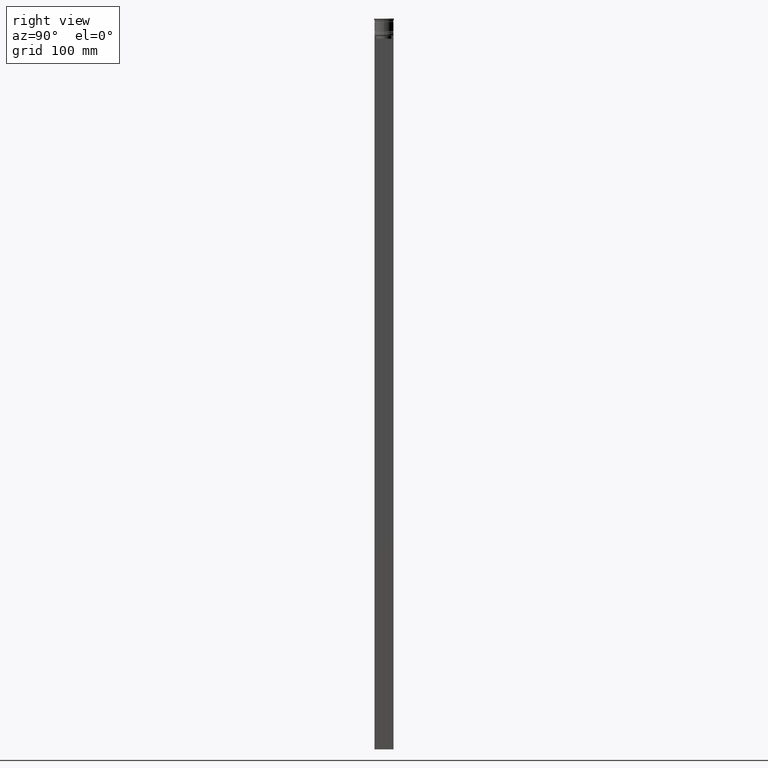
[diagram: clean part render]
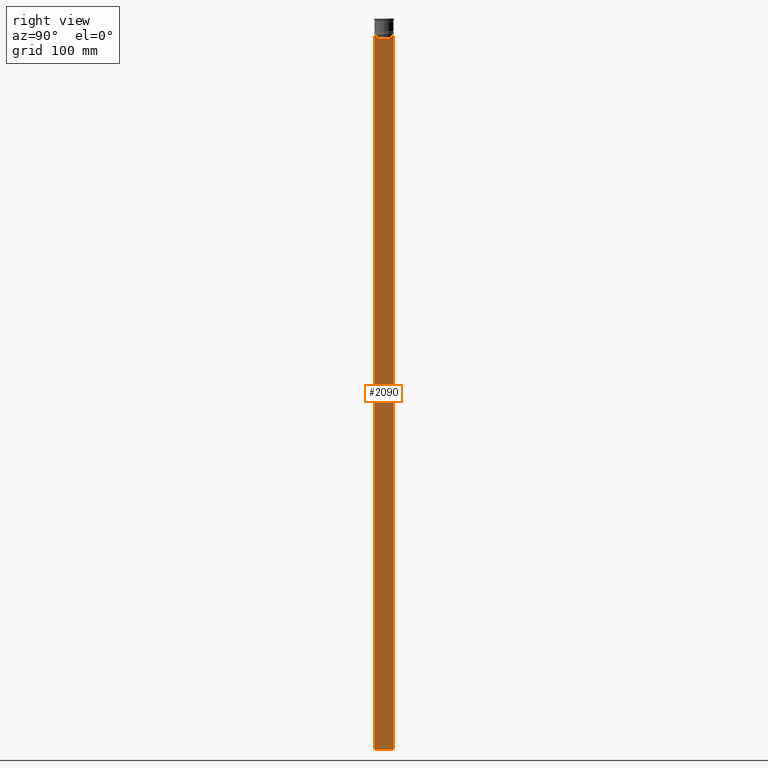
[diagram: same view with one face highlighted and labeled with its STEP entity id]
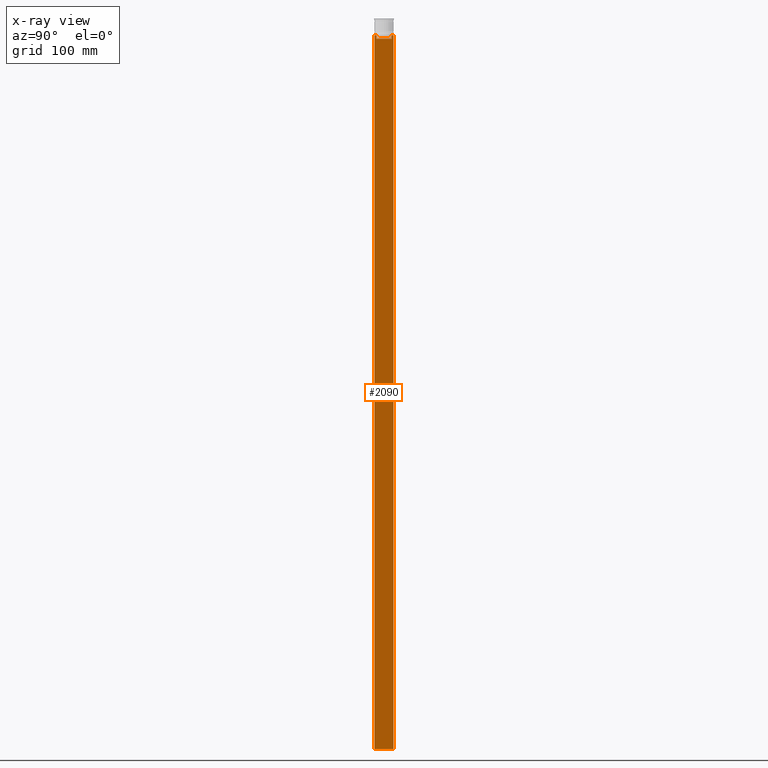
[diagram: x-ray of the same camera — body ghosted, the highlighted face saturated]
A machine part, right view. The second image highlights one B-rep face of the part: STEP entity #2090.
The next image is the same camera in x-ray: the body ghosted, the highlighted face saturated — about 0% of this face is hidden behind the body in this view.
In plain terms, the highlighted planar face has unit normal (-1, 0, 0).
Its self-contained STEP definition (entity closure, byte-faithful):
#14 = CARTESIAN_POINT ( 'NONE',  ( 0.5000000000000001110, -8.000000000000003553, -14.00000000000000178 ) ) ;
#97 = VERTEX_POINT ( 'NONE', #1918 ) ;
#131 = DIRECTION ( 'NONE',  ( 0.000000000000000000, 0.000000000000000000, -1.000000000000000000 ) ) ;
#155 = ORIENTED_EDGE ( 'NONE', *, *, #707, .T. ) ;
#184 = CARTESIAN_POINT ( 'NONE',  ( 0.5000000000000001110, 6.881860213634098500, -14.00000000000000178 ) ) ;
#185 = CARTESIAN_POINT ( 'NONE',  ( 0.5000000000000001110, 6.380438856379708312, -14.50000000000000000 ) ) ;
#200 = VECTOR ( 'NONE', #1773, 1000.000000000000000 ) ;
#210 = ORIENTED_EDGE ( 'NONE', *, *, #1432, .T. ) ;
#218 = VECTOR ( 'NONE', #2403, 1000.000000000000000 ) ;
#288 = CARTESIAN_POINT ( 'NONE',  ( 0.5000000000000001110, -6.380438856379708312, -17.00000000000000000 ) ) ;
#290 = VECTOR ( 'NONE', #327, 1000.000000000000000 ) ;
#311 = ORIENTED_EDGE ( 'NONE', *, *, #1771, .T. ) ;
#316 = FACE_OUTER_BOUND ( 'NONE', #1102, .T. ) ;
#327 = DIRECTION ( 'NONE',  ( -0.000000000000000000, -0.000000000000000000, 1.000000000000000000 ) ) ;
#347 = VERTEX_POINT ( 'NONE', #1156 ) ;
#399 = VERTEX_POINT ( 'NONE', #409 ) ;
#409 = CARTESIAN_POINT ( 'NONE',  ( 0.5000000000000001110, -8.000000000000003553, -614.0000000000000000 ) ) ;
#433 = DIRECTION ( 'NONE',  ( 0.000000000000000000, 1.000000000000000000, 0.000000000000000000 ) ) ;
#449 = VERTEX_POINT ( 'NONE', #185 ) ;
#459 = CARTESIAN_POINT ( 'NONE',  ( 0.5000000000000001110, 6.881860213634098500, -14.00000000000000178 ) ) ;
#494 = AXIS2_PLACEMENT_3D ( 'NONE', #559, #2081, #619 ) ;
#511 = CARTESIAN_POINT ( 'NONE',  ( 0.5000000000000001110, -6.380438856379708312, 0.000000000000000000 ) ) ;
#535 = LINE ( 'NONE', #14, #2316 ) ;
#559 = CARTESIAN_POINT ( 'NONE',  ( 0.5000000000000001110, -8.000000000000003553, 2.031219541881394530 ) ) ;
#568 = EDGE_CURVE ( 'NONE', #1973, #2220, #1418, .T. ) ;
#619 = DIRECTION ( 'NONE',  ( 0.000000000000000000, 0.000000000000000000, 1.000000000000000000 ) ) ;
#643 = CARTESIAN_POINT ( 'NONE',  ( 0.5000000000000001110, -6.547597841511247019, -14.33335192438652150 ) ) ;
#648 = VECTOR ( 'NONE', #1178, 1000.000000000000000 ) ;
#649 = B_SPLINE_CURVE_WITH_KNOTS ( 'NONE', 3,
 ( #844, #643, #1411, #1611 ),
 .UNSPECIFIED., .F., .F.,
 ( 4, 4 ),
 ( 0.02996184199614751464, 0.03067452609193705923 ),
 .UNSPECIFIED. ) ;
#699 = LINE ( 'NONE', #511, #290 ) ;
#707 = EDGE_CURVE ( 'NONE', #2068, #1868, #699, .T. ) ;
#718 = ORIENTED_EDGE ( 'NONE', *, *, #2159, .T. ) ;
#730 = CARTESIAN_POINT ( 'NONE',  ( 0.5000000000000001110, 6.380438856379708312, 0.000000000000000000 ) ) ;
#773 = DIRECTION ( 'NONE',  ( 0.000000000000000000, -1.000000000000000000, 0.000000000000000000 ) ) ;
#777 = CARTESIAN_POINT ( 'NONE',  ( 0.5000000000000001110, 6.714736947114692711, -14.16668390704818847 ) ) ;
#844 = CARTESIAN_POINT ( 'NONE',  ( 0.5000000000000001110, -6.380438856379708312, -14.50000000000000000 ) ) ;
#863 = ORIENTED_EDGE ( 'NONE', *, *, #2044, .F. ) ;
#953 = CARTESIAN_POINT ( 'NONE',  ( 0.5000000000000001110, 6.399999999999999467, -17.00000000000000000 ) ) ;
#977 = VECTOR ( 'NONE', #433, 1000.000000000000000 ) ;
#1080 = EDGE_CURVE ( 'NONE', #1751, #2463, #535, .T. ) ;
#1102 = EDGE_LOOP ( 'NONE', ( #1376, #311, #1387, #1948, #155, #718, #1862, #1505, #1859, #2211, #863, #210 ) ) ;
#1120 = CARTESIAN_POINT ( 'NONE',  ( 0.5000000000000001110, -6.380438856379708312, -14.50000000000000000 ) ) ;
#1121 = CARTESIAN_POINT ( 'NONE',  ( 0.5000000000000001110, -8.000000000000003553, -14.00000000000000178 ) ) ;
#1147 = LINE ( 'NONE', #2097, #1361 ) ;
#1156 = CARTESIAN_POINT ( 'NONE',  ( 0.5000000000000001110, 7.999999999999996447, -14.00000000000000178 ) ) ;
#1178 = DIRECTION ( 'NONE',  ( 0.000000000000000000, -1.000000000000000000, 0.000000000000000000 ) ) ;
#1193 = VECTOR ( 'NONE', #1727, 1000.000000000000000 ) ;
#1295 = PLANE ( 'NONE',  #494 ) ;
#1334 = LINE ( 'NONE', #953, #1193 ) ;
#1347 = VERTEX_POINT ( 'NONE', #1843 ) ;
#1359 = CARTESIAN_POINT ( 'NONE',  ( 0.5000000000000001110, 6.380438856379708312, -14.50000000000000000 ) ) ;
#1361 = VECTOR ( 'NONE', #1364, 1000.000000000000000 ) ;
#1363 = CARTESIAN_POINT ( 'NONE',  ( 0.5000000000000001110, -7.884161337770806632, -14.00000000000000178 ) ) ;
#1364 = DIRECTION ( 'NONE',  ( 0.000000000000000000, -1.000000000000000000, 0.000000000000000000 ) ) ;
#1376 = ORIENTED_EDGE ( 'NONE', *, *, #568, .T. ) ;
#1387 = ORIENTED_EDGE ( 'NONE', *, *, #2338, .T. ) ;
#1411 = CARTESIAN_POINT ( 'NONE',  ( 0.5000000000000001110, -6.714736947305993908, -14.16668390685738821 ) ) ;
#1418 = LINE ( 'NONE', #1590, #648 ) ;
#1432 = EDGE_CURVE ( 'NONE', #347, #1973, #1147, .T. ) ;
#1449 = CARTESIAN_POINT ( 'NONE',  ( 0.5000000000000001110, -8.000000000000003553, -614.0000000000000000 ) ) ;
#1505 = ORIENTED_EDGE ( 'NONE', *, *, #1592, .T. ) ;
#1529 = LINE ( 'NONE', #1791, #200 ) ;
#1550 = CARTESIAN_POINT ( 'NONE',  ( 0.5000000000000001110, 6.547597841304911626, -14.33335192459222718 ) ) ;
#1589 = VECTOR ( 'NONE', #131, 1000.000000000000000 ) ;
#1590 = CARTESIAN_POINT ( 'NONE',  ( 0.5000000000000001110, -8.000000000000003553, -14.00000000000000178 ) ) ;
#1591 = VERTEX_POINT ( 'NONE', #1874 ) ;
#1592 = EDGE_CURVE ( 'NONE', #2463, #1591, #1684, .T. ) ;
#1611 = CARTESIAN_POINT ( 'NONE',  ( 0.5000000000000001110, -6.881860213634098500, -14.00000000000000178 ) ) ;
#1631 = LINE ( 'NONE', #2446, #218 ) ;
#1684 = LINE ( 'NONE', #1121, #2196 ) ;
#1699 = DIRECTION ( 'NONE',  ( 0.000000000000000000, -1.000000000000000000, 0.000000000000000000 ) ) ;
#1727 = DIRECTION ( 'NONE',  ( 0.000000000000000000, -1.000000000000000000, 0.000000000000000000 ) ) ;
#1751 = VERTEX_POINT ( 'NONE', #1928 ) ;
#1771 = EDGE_CURVE ( 'NONE', #2220, #449, #1911, .T. ) ;
#1773 = DIRECTION ( 'NONE',  ( 0.000000000000000000, 0.000000000000000000, -1.000000000000000000 ) ) ;
#1789 = EDGE_CURVE ( 'NONE', #97, #2068, #1334, .T. ) ;
#1791 = CARTESIAN_POINT ( 'NONE',  ( 0.5000000000000001110, -8.000000000000003553, 2.031219541881394530 ) ) ;
#1832 = LINE ( 'NONE', #1449, #977 ) ;
#1843 = CARTESIAN_POINT ( 'NONE',  ( 0.5000000000000001110, 7.999999999999996447, -614.0000000000000000 ) ) ;
#1856 = LINE ( 'NONE', #730, #1589 ) ;
#1859 = ORIENTED_EDGE ( 'NONE', *, *, #1977, .T. ) ;
#1862 = ORIENTED_EDGE ( 'NONE', *, *, #1080, .T. ) ;
#1868 = VERTEX_POINT ( 'NONE', #1120 ) ;
#1874 = CARTESIAN_POINT ( 'NONE',  ( 0.5000000000000001110, -8.000000000000003553, -14.00000000000000178 ) ) ;
#1911 = B_SPLINE_CURVE_WITH_KNOTS ( 'NONE', 3,
 ( #184, #777, #1550, #1359 ),
 .UNSPECIFIED., .F., .F.,
 ( 4, 4 ),
 ( 0.01172465562756038263, 0.01243276816391822651 ),
 .UNSPECIFIED. ) ;
#1918 = CARTESIAN_POINT ( 'NONE',  ( 0.5000000000000001110, 6.380438856379708312, -17.00000000000000000 ) ) ;
#1928 = CARTESIAN_POINT ( 'NONE',  ( 0.5000000000000001110, -6.881860213634098500, -14.00000000000000178 ) ) ;
#1948 = ORIENTED_EDGE ( 'NONE', *, *, #1789, .T. ) ;
#1973 = VERTEX_POINT ( 'NONE', #2488 ) ;
#1977 = EDGE_CURVE ( 'NONE', #1591, #399, #1529, .T. ) ;
#2044 = EDGE_CURVE ( 'NONE', #347, #1347, #1631, .T. ) ;
#2068 = VERTEX_POINT ( 'NONE', #288 ) ;
#2081 = DIRECTION ( 'NONE',  ( -1.000000000000000000, 0.000000000000000000, 0.000000000000000000 ) ) ;
#2090 = ADVANCED_FACE ( 'NONE', ( #316 ), #1295, .F. ) ;
#2097 = CARTESIAN_POINT ( 'NONE',  ( 0.5000000000000001110, -8.000000000000003553, -14.00000000000000178 ) ) ;
#2159 = EDGE_CURVE ( 'NONE', #1868, #1751, #649, .T. ) ;
#2162 = EDGE_CURVE ( 'NONE', #399, #1347, #1832, .T. ) ;
#2196 = VECTOR ( 'NONE', #1699, 1000.000000000000000 ) ;
#2211 = ORIENTED_EDGE ( 'NONE', *, *, #2162, .T. ) ;
#2220 = VERTEX_POINT ( 'NONE', #459 ) ;
#2316 = VECTOR ( 'NONE', #773, 1000.000000000000000 ) ;
#2338 = EDGE_CURVE ( 'NONE', #449, #97, #1856, .T. ) ;
#2403 = DIRECTION ( 'NONE',  ( 0.000000000000000000, 0.000000000000000000, -1.000000000000000000 ) ) ;
#2446 = CARTESIAN_POINT ( 'NONE',  ( 0.5000000000000001110, 7.999999999999996447, 2.031219541881394530 ) ) ;
#2463 = VERTEX_POINT ( 'NONE', #1363 ) ;
#2488 = CARTESIAN_POINT ( 'NONE',  ( 0.5000000000000001110, 7.884161337770806632, -14.00000000000000178 ) ) ;